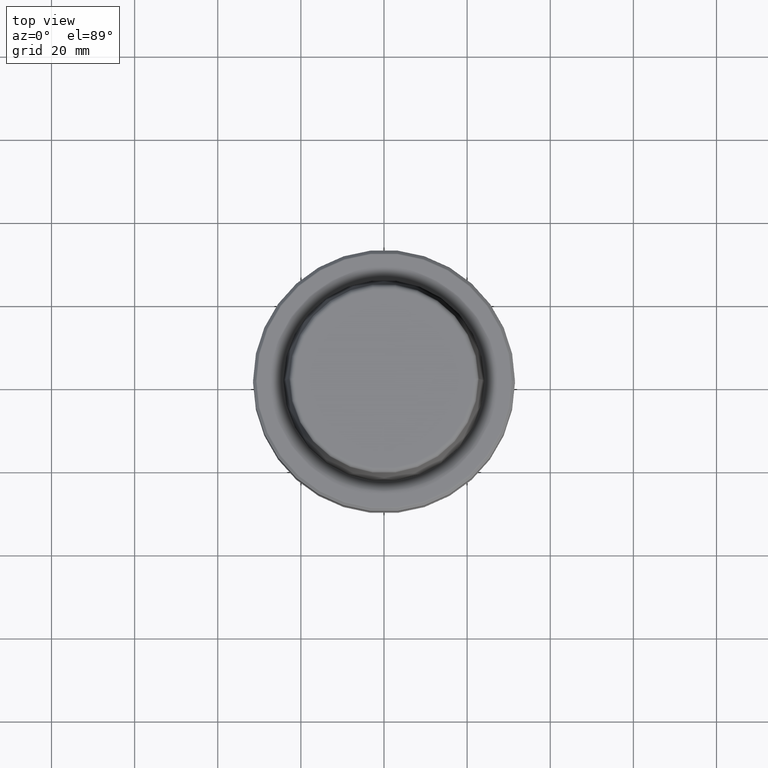
[diagram: clean part render]
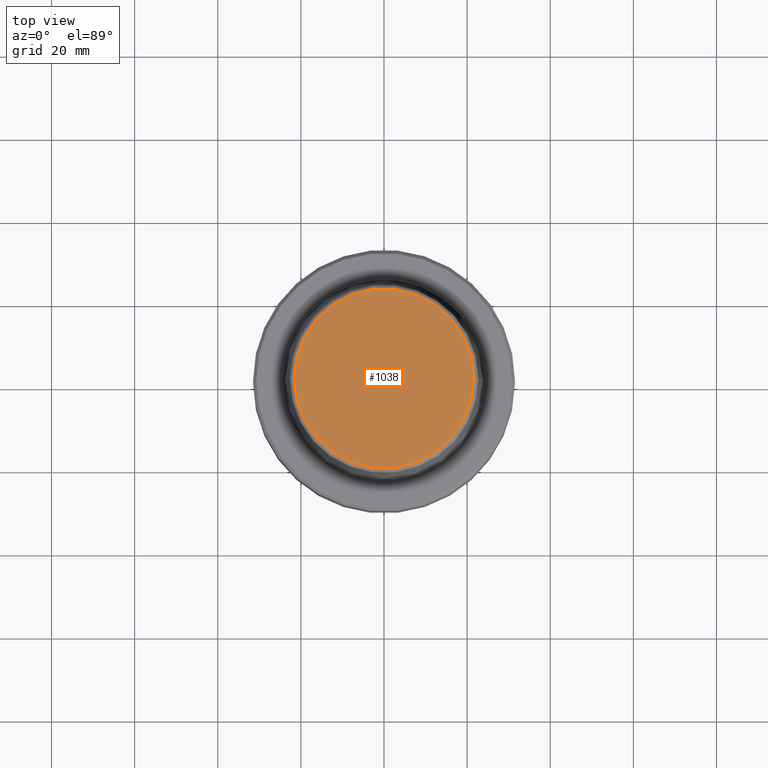
[diagram: same view with one face highlighted and labeled with its STEP entity id]
A machine part, top view. The second image highlights one B-rep face of the part: STEP entity #1038.
In plain terms, the highlighted planar face has unit normal (0, 0, -1).
Its self-contained STEP definition (entity closure, byte-faithful):
#24 = EDGE_CURVE ( 'NONE', #759, #200, #805, .T. ) ;
#65 = DIRECTION ( 'NONE',  ( 1.000000000000000000, 0.0000000000000000000, 0.0000000000000000000 ) ) ;
#183 = CARTESIAN_POINT ( 'NONE',  ( 21.58108272732117100, 0.0000000000000000000, 31.89999999999999900 ) ) ;
#200 = VERTEX_POINT ( 'NONE', #551 ) ;
#276 = DIRECTION ( 'NONE',  ( -0.0000000000000000000, -0.0000000000000000000, 1.000000000000000000 ) ) ;
#314 = CARTESIAN_POINT ( 'NONE',  ( 0.0000000000000000000, 0.0000000000000000000, 31.89999999999999900 ) ) ;
#344 = EDGE_LOOP ( 'NONE', ( #688, #1000 ) ) ;
#405 = DIRECTION ( 'NONE',  ( -1.000000000000000000, 0.0000000000000000000, -0.0000000000000000000 ) ) ;
#479 = CARTESIAN_POINT ( 'NONE',  ( 0.0000000000000000000, 0.0000000000000000000, 31.89999999999999900 ) ) ;
#500 = PLANE ( 'NONE',  #792 ) ;
#536 = FACE_OUTER_BOUND ( 'NONE', #344, .T. ) ;
#551 = CARTESIAN_POINT ( 'NONE',  ( -21.58108272732117100, 2.716307157494421400E-015, 31.89999999999999900 ) ) ;
#678 = DIRECTION ( 'NONE',  ( 1.000000000000000000, 0.0000000000000000000, 0.0000000000000000000 ) ) ;
#688 = ORIENTED_EDGE ( 'NONE', *, *, #24, .T. ) ;
#722 = AXIS2_PLACEMENT_3D ( 'NONE', #479, #276, #678 ) ;
#759 = VERTEX_POINT ( 'NONE', #183 ) ;
#761 = AXIS2_PLACEMENT_3D ( 'NONE', #1011, #1076, #65 ) ;
#792 = AXIS2_PLACEMENT_3D ( 'NONE', #314, #1077, #405 ) ;
#805 = CIRCLE ( 'NONE', #761, 21.58108272732117100 ) ;
#812 = CIRCLE ( 'NONE', #722, 21.58108272732117100 ) ;
#897 = EDGE_CURVE ( 'NONE', #200, #759, #812, .T. ) ;
#1000 = ORIENTED_EDGE ( 'NONE', *, *, #897, .T. ) ;
#1011 = CARTESIAN_POINT ( 'NONE',  ( 0.0000000000000000000, 0.0000000000000000000, 31.89999999999999900 ) ) ;
#1038 = ADVANCED_FACE ( 'NONE', ( #536 ), #500, .F. ) ;
#1076 = DIRECTION ( 'NONE',  ( -0.0000000000000000000, -0.0000000000000000000, 1.000000000000000000 ) ) ;
#1077 = DIRECTION ( 'NONE',  ( 0.0000000000000000000, 0.0000000000000000000, -1.000000000000000000 ) ) ;